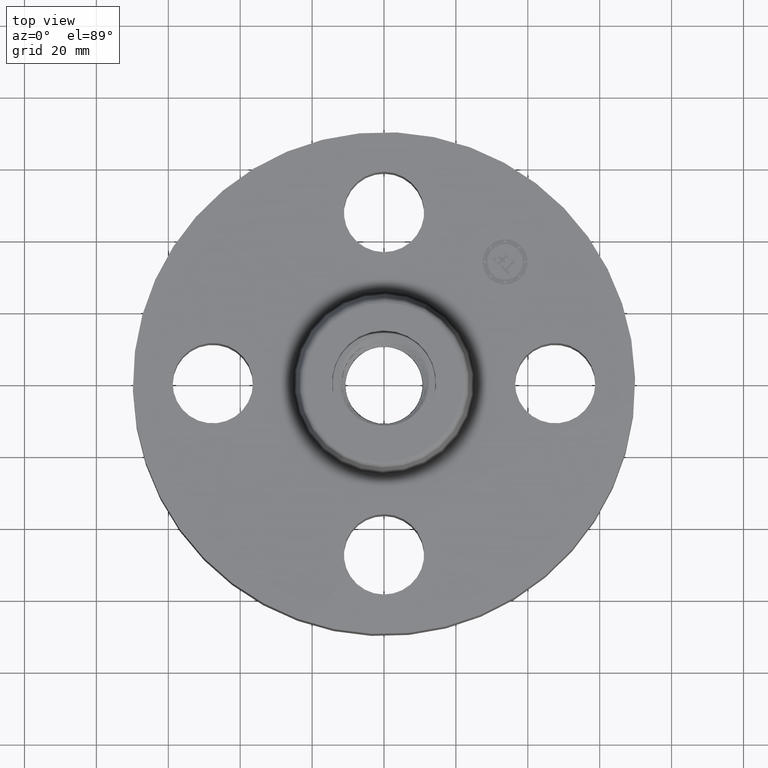
[diagram: clean part render]
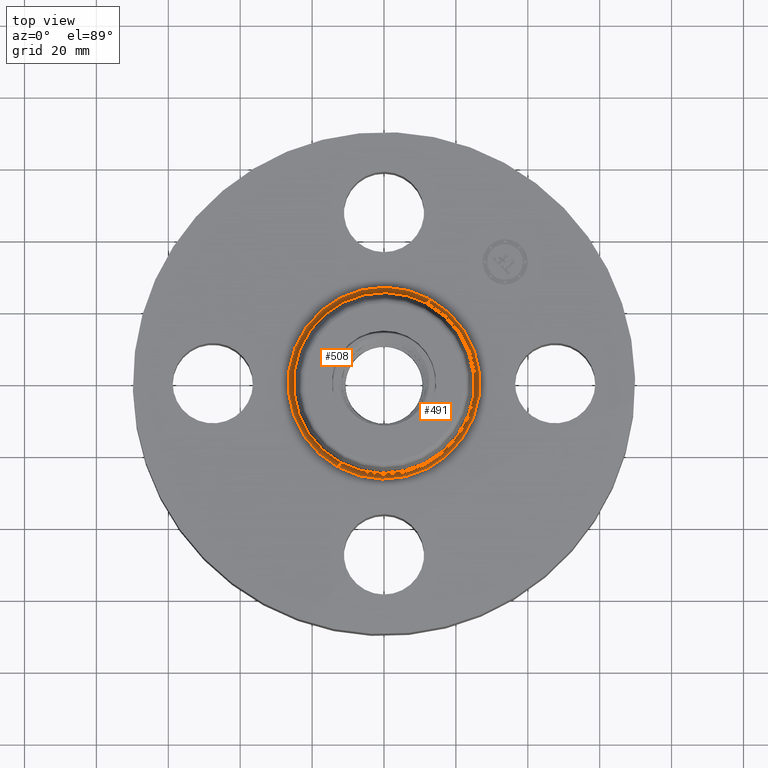
[diagram: same view with one multi-face feature highlighted, each face labeled with its STEP entity id]
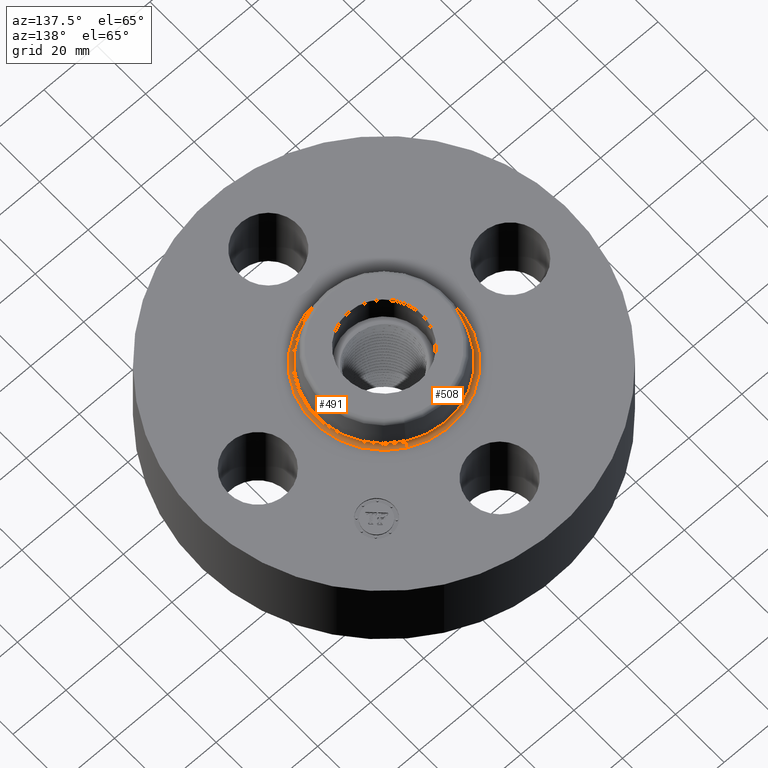
[diagram: same view with one multi-face feature highlighted, each face labeled with its STEP entity id]
A machine part, top view. The highlighted faces form ONE feature: a constant-radius fillet chain: 2 tangent blend faces with common blend radius 1.524 mm. The faces share edges in the B-rep.
A second angle (auxiliary view) of the same feature is appended — it is thin or edge-on in the first view.
Their STEP definitions:
[1] entity #508 (Torus):
#455=AXIS2_PLACEMENT_3D('Torus Axis2P3D',#452,#453,#454) ;
#468=AXIS2_PLACEMENT_3D('Circle Axis2P3D',#466,#467,$) ;
#482=AXIS2_PLACEMENT_3D('Circle Axis2P3D',#480,#481,$) ;
#494=AXIS2_PLACEMENT_3D('Circle Axis2P3D',#492,#493,$) ;
#499=AXIS2_PLACEMENT_3D('Circle Axis2P3D',#497,#498,$) ;
#452=CARTESIAN_POINT('Axis2P3D Location',(0.,0.,1.31000000001)) ;
#461=CARTESIAN_POINT('Vertex',(0.503562686163,0.921765314135,1.25000000001)) ;
#463=CARTESIAN_POINT('Vertex',(-0.503562686163,-0.921765314135,1.25000000001)) ;
#466=CARTESIAN_POINT('Axis2P3D Location',(0.503562686163,0.921765314135,1.31000000001)) ;
#470=CARTESIAN_POINT('Vertex',(0.475234166919,0.869910307483,1.29958110935)) ;
#477=CARTESIAN_POINT('Vertex',(-0.475234166919,-0.869910307483,1.29958110935)) ;
#480=CARTESIAN_POINT('Axis2P3D Location',(-0.503562686163,-0.921765314135,1.31000000001)) ;
#492=CARTESIAN_POINT('Axis2P3D Location',(0.,0.,1.25000000001)) ;
#497=CARTESIAN_POINT('Axis2P3D Location',(0.,0.,1.29958110935)) ;
#453=DIRECTION('Axis2P3D Direction',(0.,0.,-0.0393700787402)) ;
#454=DIRECTION('Axis2P3D XDirection',(-0.0188750212049,-0.0345504945626,0.)) ;
#467=DIRECTION('Axis2P3D Direction',(-0.0345504945626,0.0188750212049,0.)) ;
#481=DIRECTION('Axis2P3D Direction',(0.0345504945626,-0.0188750212049,0.)) ;
#493=DIRECTION('Axis2P3D Direction',(0.,0.,-0.0393700787402)) ;
#498=DIRECTION('Axis2P3D Direction',(0.,0.,-0.0393700787402)) ;
#503=ORIENTED_EDGE('',*,*,#496,.F.) ;
#504=ORIENTED_EDGE('',*,*,#484,.T.) ;
#505=ORIENTED_EDGE('',*,*,#501,.T.) ;
#506=ORIENTED_EDGE('',*,*,#472,.F.) ;
#508=ADVANCED_FACE('PartBody',(#507),#456,.F.) ;
#469=CIRCLE('generated circle',#468,0.0600000000002) ;
#483=CIRCLE('generated circle',#482,0.0600000000002) ;
#495=CIRCLE('generated circle',#494,1.05034597787) ;
#500=CIRCLE('generated circle',#499,0.991257512694) ;
#456=TOROIDAL_SURFACE('homeo Torus',#455,1.05034597787,0.0600000000002) ;
#472=EDGE_CURVE('',#462,#471,#469,.T.) ;
#484=EDGE_CURVE('',#464,#478,#483,.T.) ;
#496=EDGE_CURVE('',#464,#462,#495,.T.) ;
#501=EDGE_CURVE('',#478,#471,#500,.T.) ;
#502=EDGE_LOOP('',(#503,#504,#505,#506)) ;
#507=FACE_OUTER_BOUND('',#502,.T.) ;
#462=VERTEX_POINT('',#461) ;
#464=VERTEX_POINT('',#463) ;
#471=VERTEX_POINT('',#470) ;
#478=VERTEX_POINT('',#477) ;
[2] entity #491 (Torus):
#455=AXIS2_PLACEMENT_3D('Torus Axis2P3D',#452,#453,#454) ;
#459=AXIS2_PLACEMENT_3D('Circle Axis2P3D',#457,#458,$) ;
#468=AXIS2_PLACEMENT_3D('Circle Axis2P3D',#466,#467,$) ;
#475=AXIS2_PLACEMENT_3D('Circle Axis2P3D',#473,#474,$) ;
#482=AXIS2_PLACEMENT_3D('Circle Axis2P3D',#480,#481,$) ;
#452=CARTESIAN_POINT('Axis2P3D Location',(0.,0.,1.31000000001)) ;
#457=CARTESIAN_POINT('Axis2P3D Location',(0.,0.,1.25000000001)) ;
#461=CARTESIAN_POINT('Vertex',(0.503562686163,0.921765314135,1.25000000001)) ;
#463=CARTESIAN_POINT('Vertex',(-0.503562686163,-0.921765314135,1.25000000001)) ;
#466=CARTESIAN_POINT('Axis2P3D Location',(0.503562686163,0.921765314135,1.31000000001)) ;
#470=CARTESIAN_POINT('Vertex',(0.475234166919,0.869910307483,1.29958110935)) ;
#473=CARTESIAN_POINT('Axis2P3D Location',(0.,0.,1.29958110935)) ;
#477=CARTESIAN_POINT('Vertex',(-0.475234166919,-0.869910307483,1.29958110935)) ;
#480=CARTESIAN_POINT('Axis2P3D Location',(-0.503562686163,-0.921765314135,1.31000000001)) ;
#453=DIRECTION('Axis2P3D Direction',(0.,0.,-0.0393700787402)) ;
#454=DIRECTION('Axis2P3D XDirection',(-0.0188750212049,-0.0345504945626,0.)) ;
#458=DIRECTION('Axis2P3D Direction',(0.,0.,-0.0393700787402)) ;
#467=DIRECTION('Axis2P3D Direction',(-0.0345504945626,0.0188750212049,0.)) ;
#474=DIRECTION('Axis2P3D Direction',(0.,0.,-0.0393700787402)) ;
#481=DIRECTION('Axis2P3D Direction',(0.0345504945626,-0.0188750212049,0.)) ;
#486=ORIENTED_EDGE('',*,*,#465,.F.) ;
#487=ORIENTED_EDGE('',*,*,#472,.T.) ;
#488=ORIENTED_EDGE('',*,*,#479,.T.) ;
#489=ORIENTED_EDGE('',*,*,#484,.F.) ;
#491=ADVANCED_FACE('PartBody',(#490),#456,.F.) ;
#460=CIRCLE('generated circle',#459,1.05034597787) ;
#469=CIRCLE('generated circle',#468,0.0600000000002) ;
#476=CIRCLE('generated circle',#475,0.991257512694) ;
#483=CIRCLE('generated circle',#482,0.0600000000002) ;
#456=TOROIDAL_SURFACE('homeo Torus',#455,1.05034597787,0.0600000000002) ;
#465=EDGE_CURVE('',#462,#464,#460,.T.) ;
#472=EDGE_CURVE('',#462,#471,#469,.T.) ;
#479=EDGE_CURVE('',#471,#478,#476,.T.) ;
#484=EDGE_CURVE('',#464,#478,#483,.T.) ;
#485=EDGE_LOOP('',(#486,#487,#488,#489)) ;
#490=FACE_OUTER_BOUND('',#485,.T.) ;
#462=VERTEX_POINT('',#461) ;
#464=VERTEX_POINT('',#463) ;
#471=VERTEX_POINT('',#470) ;
#478=VERTEX_POINT('',#477) ;